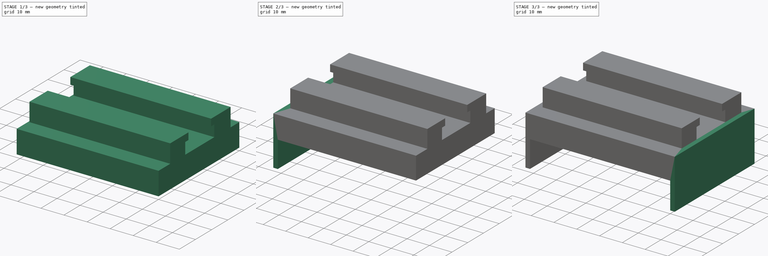
[diagram: build sequence overview — one tinted view per stage of 3, left to right]
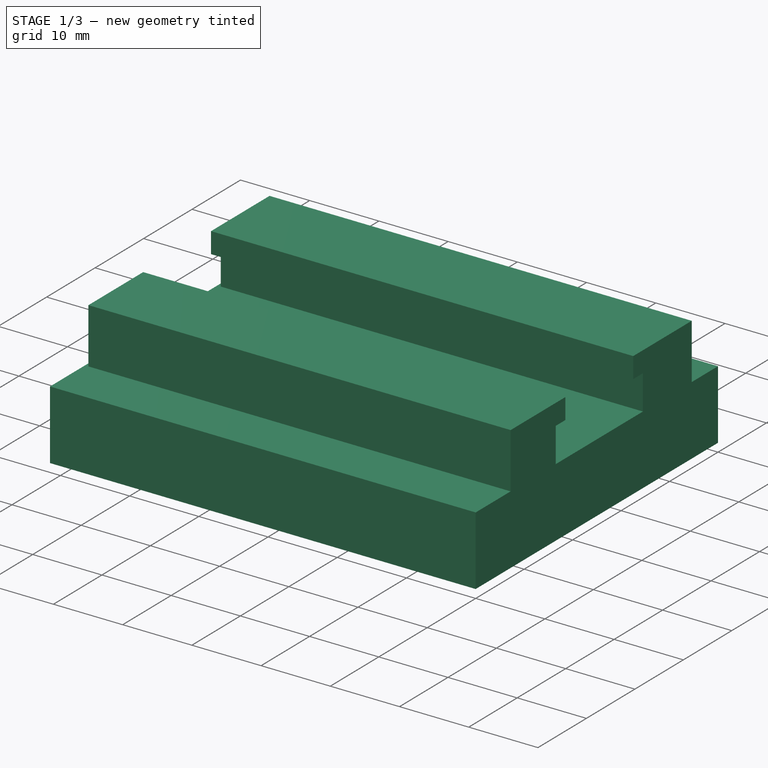
[diagram: stage 1 of 3 — iso view after this stage's code; geometry added in this stage tinted green]
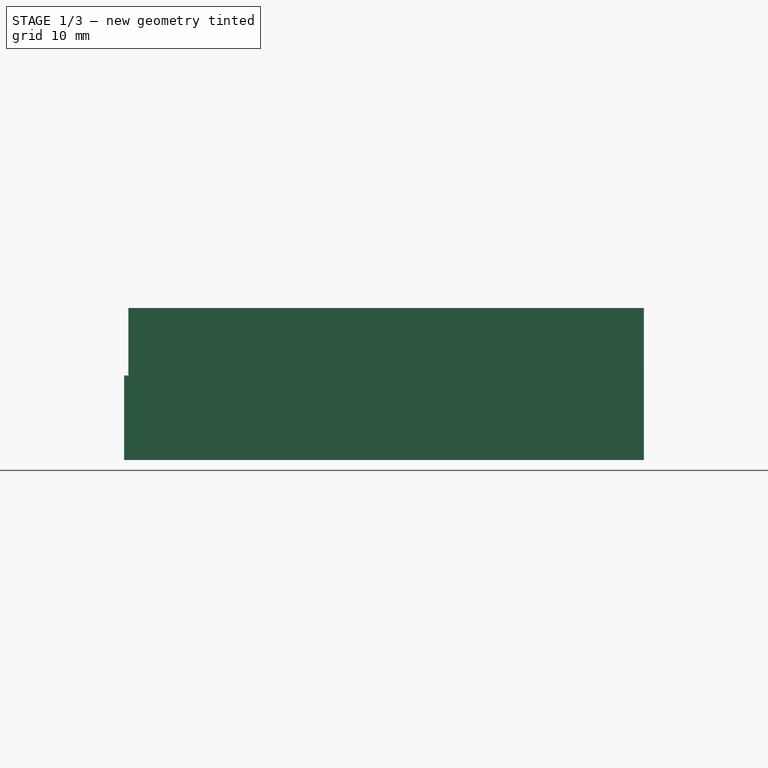
[diagram: stage 1 of 3 — front view after this stage's code; geometry added in this stage tinted green]
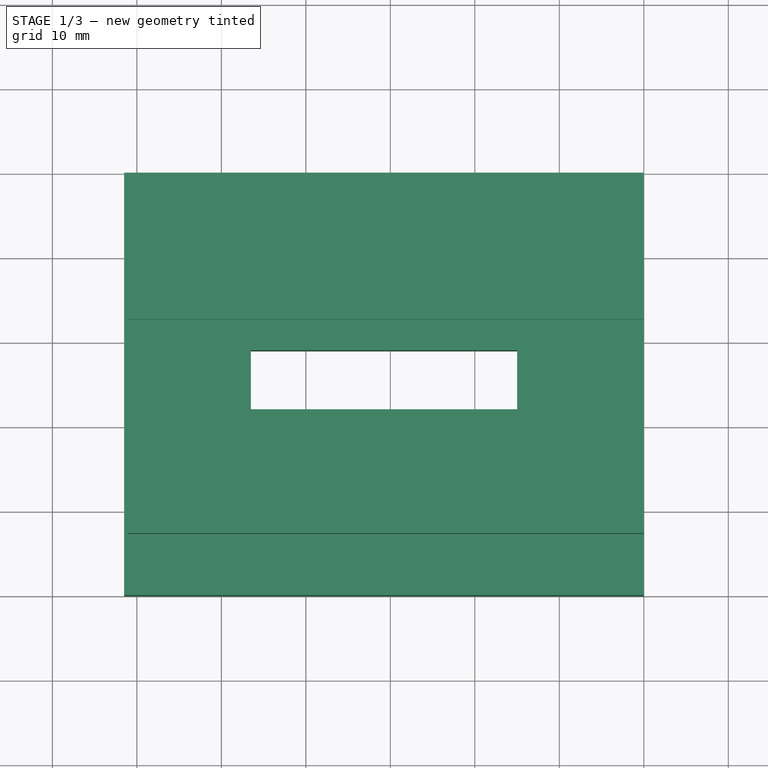
[diagram: stage 1 of 3 — top view after this stage's code; geometry added in this stage tinted green]
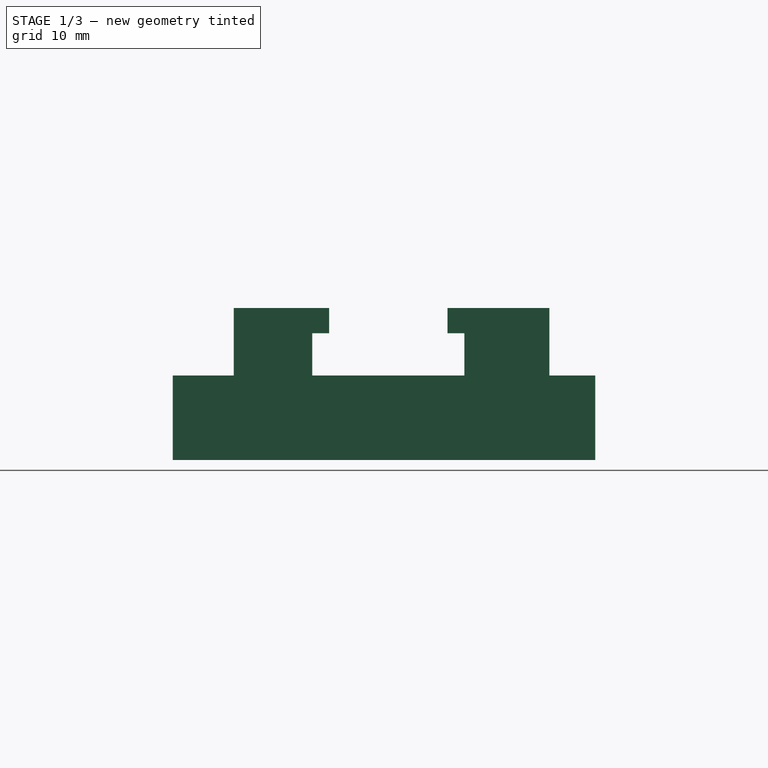
[diagram: stage 1 of 3 — right view after this stage's code; geometry added in this stage tinted green]
FCSTD DOCUMENT  (FreeCAD 1.0R38643 (Git))
Label: Braket
License: All rights reserved
LicenseURL: https://en.wikipedia.org/wiki/All_rights_reserved
objects: TechDraw::DrawViewDimension×9, Sketcher::SketchObject×5, PartDesign::Pad×5, TechDraw::DrawProjGroupItem×3, TechDraw::DrawSVGTemplate×1, PartDesign::Body×1, TechDraw::DrawPage×1
note: 44 computed .brp shape members not serialized (recipe doc carries the construction recipe); baked Part::Feature solids carry a one-line shape summary decoded from their .brp

FEATURE [Sketcher::SketchObject] Sketch
  ArcFitTolerance = 1e-06
  AttachmentSupport = -> [XY_Plane]
  FullyConstrained = true
  MakeInternals = false
  MapMode = 5
  sketch-geometry (8):
    g0: LineSegment StartX=-61.5 StartY=50 StartZ=0 EndX=-61.5 EndY=0 EndZ=0
    g1: LineSegment StartX=-61.5 StartY=0 StartZ=0 EndX=0 EndY=0 EndZ=0
    g2: LineSegment StartX=0 StartY=0 StartZ=0 EndX=0 EndY=50 EndZ=0
    g3: LineSegment StartX=0 StartY=50 StartZ=0 EndX=-61.5 EndY=50 EndZ=0
    g4: LineSegment StartX=-46.5 StartY=29 StartZ=0 EndX=-46.5 EndY=22 EndZ=0
    g5: LineSegment StartX=-46.5 StartY=22 StartZ=0 EndX=-15 EndY=22 EndZ=0
    g6: LineSegment StartX=-15 StartY=22 StartZ=0 EndX=-15 EndY=29 EndZ=0
    g7: LineSegment StartX=-15 StartY=29 StartZ=0 EndX=-46.5 EndY=29 EndZ=0
  constraints (23):
    c: Coincident(g0,g1)
    c: Coincident(g1,g2)
    c: Coincident(g2,g3)
    c: Coincident(g3,g0)
    c: Vertical(g0)
    c: Vertical(g2)
    c: Horizontal(g1)
    c: Horizontal(g3)
    c: Coincident(g1,g-1)
    c: Coincident(g4,g5)
    c: Coincident(g5,g6)
    c: Coincident(g6,g7)
    c: Coincident(g7,g4)
    c: Vertical(g4)
    c: Vertical(g6)
    c: Horizontal(g5)
    c: Horizontal(g7)
    c: DistanceX(g0,g2) = 61.5
    c: DistanceY(g-1,g0) = 50
    c: DistanceX(g6,g2) = 15
    c: DistanceX(g0,g4) = 15
    c: DistanceY(g4,g4) = 7
    c: DistanceY(g4,g0) = 21
FEATURE [PartDesign::Pad] Pad
  Direction = (0,0,1)
  Length = 10
  Length2 = 10
  Profile = -> Sketch
  ReferenceAxis = -> Sketch [N_Axis]
  Refine = true
  Suppressed = false
  Type = 0
FEATURE [Sketcher::SketchObject] Sketch001
  ArcFitTolerance = 1e-06
  AttachmentSupport = -> [Pad]
  ExternalGeometry = -> [Pad]
  FullyConstrained = false
  MakeInternals = false
  MapMode = 5
  Placement = pos=(0,0,0) rot=(0.57735,0.57735,0.57735;2.0944rad)
  sketch-geometry (12):
    g0: LineSegment StartX=7.2128 StartY=5 StartZ=0 EndX=7.2128 EndY=18 EndZ=0
    g1: LineSegment StartX=7.2128 StartY=18 StartZ=0 EndX=18.5127 EndY=18 EndZ=0
    g2: LineSegment StartX=18.5127 StartY=18 StartZ=0 EndX=18.5127 EndY=15 EndZ=0
    g3: LineSegment StartX=18.5127 StartY=15 StartZ=0 EndX=16.5127 EndY=15 EndZ=0
    g4: LineSegment StartX=16.5127 StartY=15 StartZ=0 EndX=16.5127 EndY=5 EndZ=0
    g5: LineSegment StartX=7.2128 StartY=5 StartZ=0 EndX=16.5127 EndY=5 EndZ=0
    g6: LineSegment StartX=44.5791 StartY=5 StartZ=0 EndX=44.5791 EndY=18 EndZ=0
    g7: LineSegment StartX=44.5791 StartY=18 StartZ=0 EndX=32.5127 EndY=18 EndZ=0
    g8: LineSegment StartX=32.5127 StartY=18 StartZ=0 EndX=32.5127 EndY=15 EndZ=0
    g9: LineSegment StartX=32.5127 StartY=15 StartZ=0 EndX=34.5127 EndY=15 EndZ=0
    g10: LineSegment StartX=34.5127 StartY=15 StartZ=0 EndX=34.5127 EndY=5 EndZ=0
    g11: LineSegment StartX=44.5791 StartY=5 StartZ=0 EndX=34.5127 EndY=5 EndZ=0
  constraints (33):
    c: Vertical(g0)
    c: Coincident(g1,g0)
    c: Horizontal(g1)
    c: Coincident(g2,g1)
    c: Vertical(g2)
    c: Coincident(g3,g2)
    c: Horizontal(g3)
    c: Coincident(g4,g3)
    c: Vertical(g4)
    c: Coincident(g5,g0)
    c: Coincident(g5,g4)
    c: Horizontal(g4,g0)
    c: Vertical(g6)
    c: Coincident(g7,g6)
    c: Horizontal(g7)
    c: Coincident(g8,g7)
    c: Vertical(g8)
    c: Coincident(g9,g8)
    c: Horizontal(g9)
    c: Coincident(g10,g9)
    c: Vertical(g10)
    c: Coincident(g11,g6)
    c: Coincident(g11,g10)
    c: Horizontal(g10,g6)
    c: DistanceX(g4,g10) = 18
    c: DistanceY(g-1,g0) = 5
    c: DistanceY(g-1,g6) = 5
    c: Horizontal(g3,g9)
    c: Horizontal(g1,g7)
    c: DistanceY(g-3,g9) = 5
    c: DistanceX(g3,g2) = 2
    c: DistanceX(g8,g9) = 2
    c: DistanceY(g2,g1) = 3
FEATURE [PartDesign::Pad] Pad001
  BaseFeature = -> Pad
  Direction = (1,0,0)
  Length = 61
  Length2 = 10
  Profile = -> Sketch001
  ReferenceAxis = -> Sketch001 [N_Axis]
  Refine = true
  Reversed = true
  Suppressed = false
  Type = 0
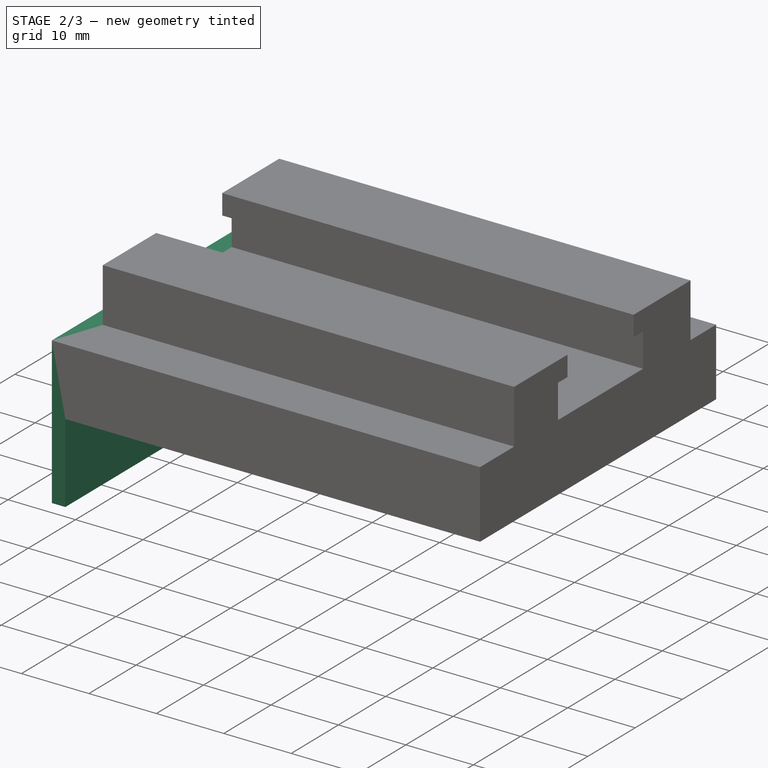
[diagram: stage 2 of 3 — iso view after this stage's code; geometry added in this stage tinted green]
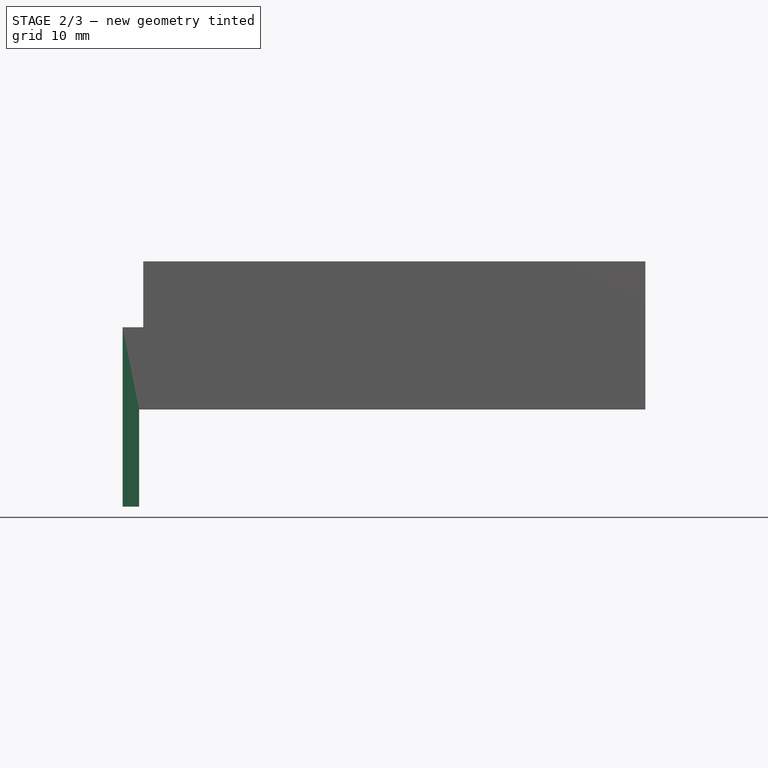
[diagram: stage 2 of 3 — front view after this stage's code; geometry added in this stage tinted green]
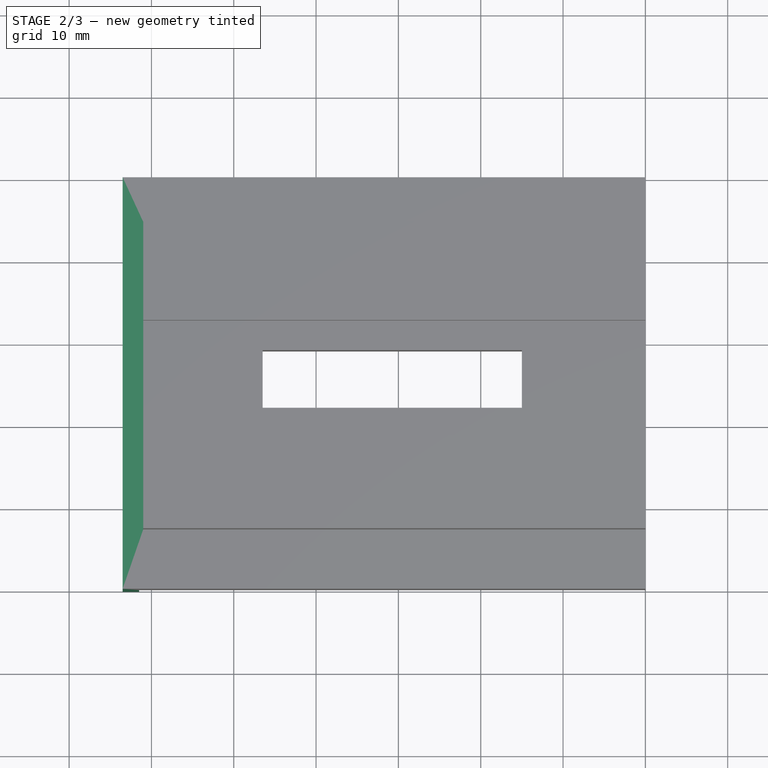
[diagram: stage 2 of 3 — top view after this stage's code; geometry added in this stage tinted green]
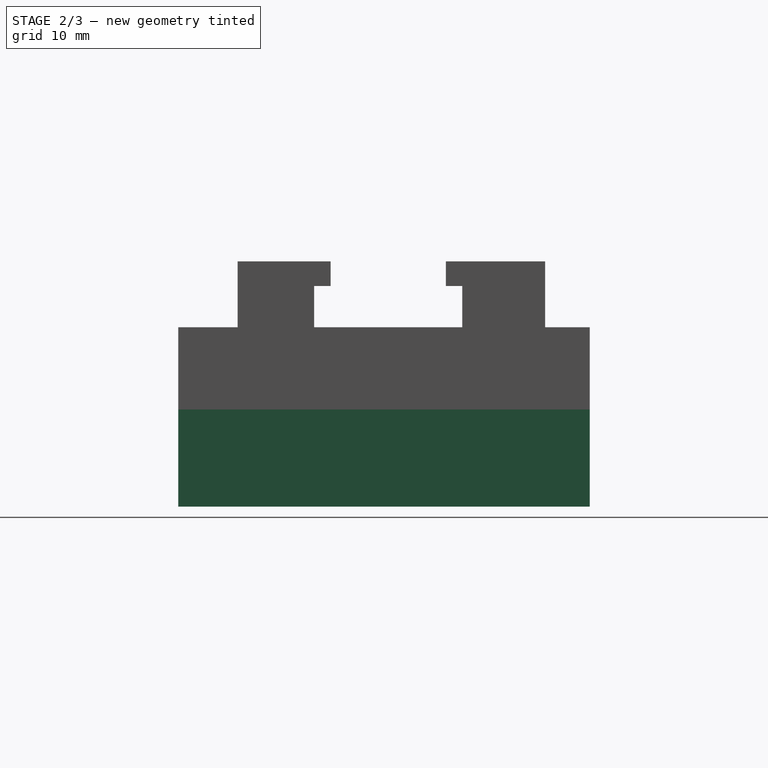
[diagram: stage 2 of 3 — right view after this stage's code; geometry added in this stage tinted green]
FEATURE [Sketcher::SketchObject] Sketch002
  ArcFitTolerance = 1e-06
  AttachmentSupport = -> [Pad001]
  ExternalGeometry = -> [Pad001]
  FullyConstrained = false
  MakeInternals = false
  MapMode = 5
  Placement = pos=(-61.5,0,0) rot=(0.57735,-0.57735,-0.57735;2.0944rad)
  sketch-geometry (4):
    g0: LineSegment StartX=-50 StartY=10 StartZ=0 EndX=-50 EndY=-11.7959 EndZ=0
    g1: LineSegment StartX=-50 StartY=-11.7959 StartZ=0 EndX=0 EndY=-11.7959 EndZ=0
    g2: LineSegment StartX=0 StartY=-11.7959 StartZ=0 EndX=0 EndY=10 EndZ=0
    g3: LineSegment StartX=0 StartY=10 StartZ=0 EndX=-50 EndY=10 EndZ=0
  constraints (10):
    c: Coincident(g0,g1)
    c: Coincident(g1,g2)
    c: Coincident(g2,g3)
    c: Coincident(g3,g0)
    c: Vertical(g0)
    c: Vertical(g2)
    c: Horizontal(g1)
    c: Horizontal(g3)
    c: Coincident(g0,g-4)
    c: PointOnObject(g1,g-2)
FEATURE [PartDesign::Pad] Pad002
  BaseFeature = -> Pad001
  Direction = (-1,0,0)
  Length = 2
  Length2 = 10
  Profile = -> Sketch002
  ReferenceAxis = -> Sketch002 [N_Axis]
  Refine = true
  Suppressed = false
  Type = 0
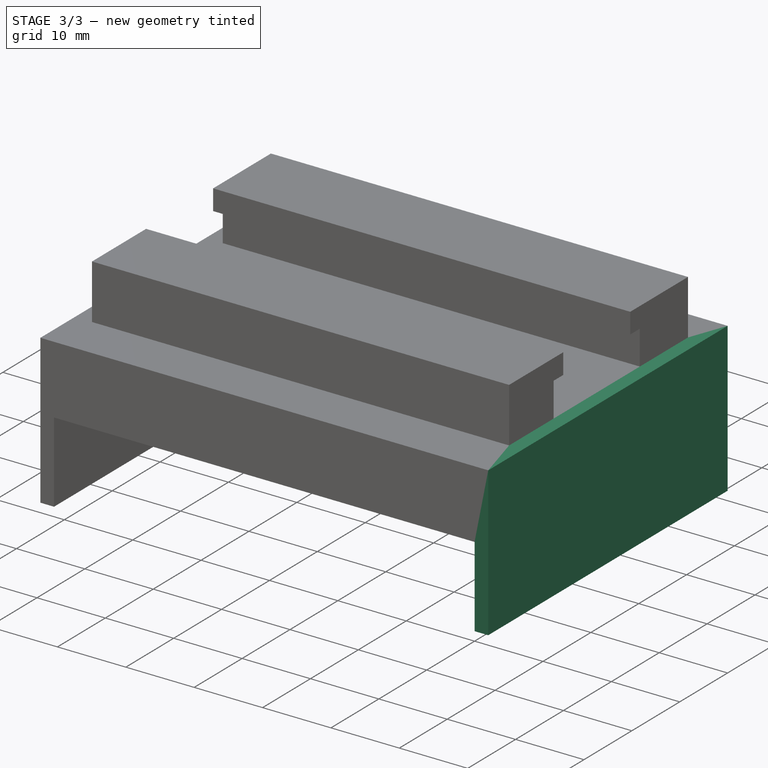
[diagram: stage 3 of 3 — iso view after this stage's code; geometry added in this stage tinted green]
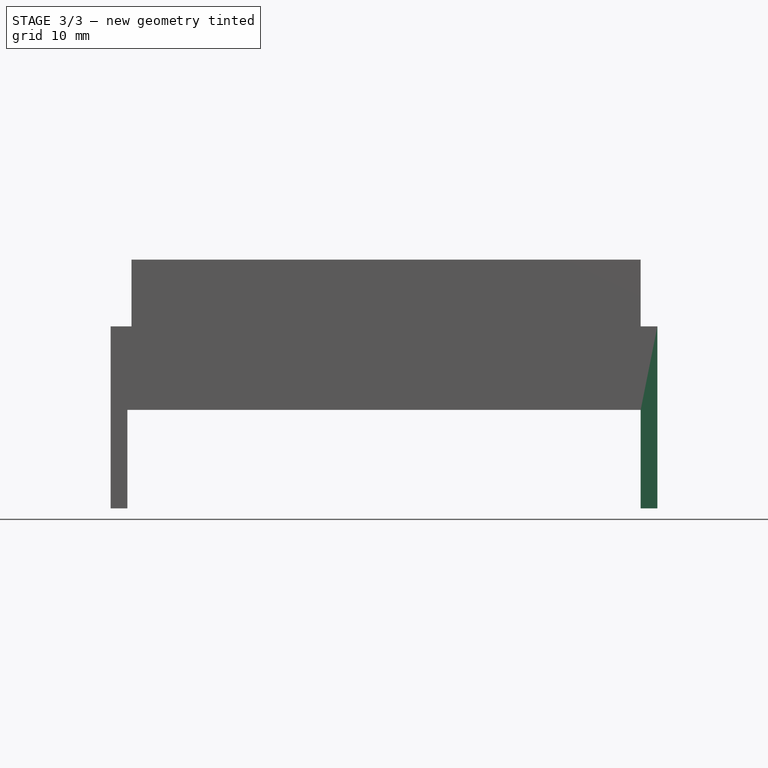
[diagram: stage 3 of 3 — front view after this stage's code; geometry added in this stage tinted green]
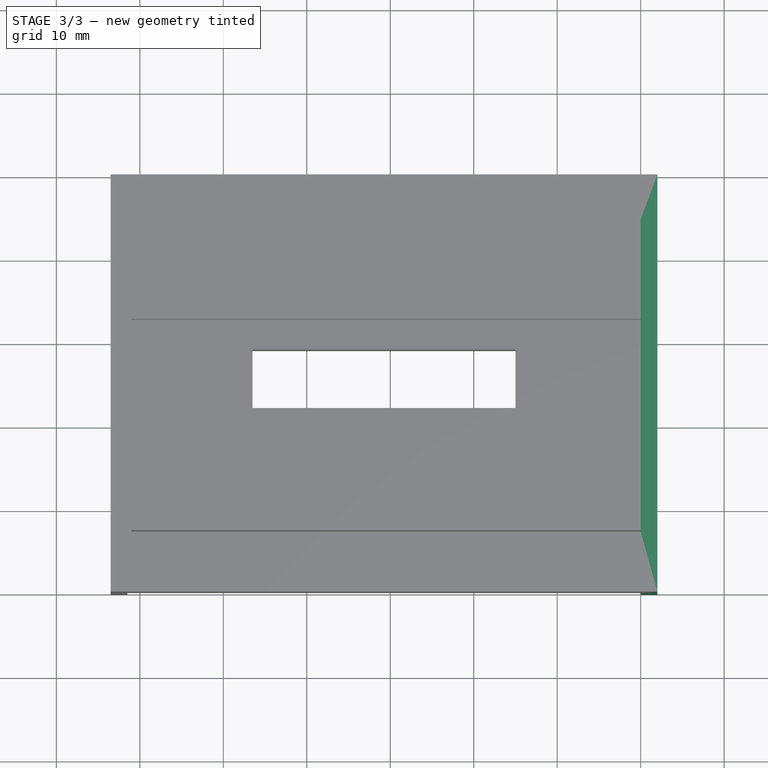
[diagram: stage 3 of 3 — top view after this stage's code; geometry added in this stage tinted green]
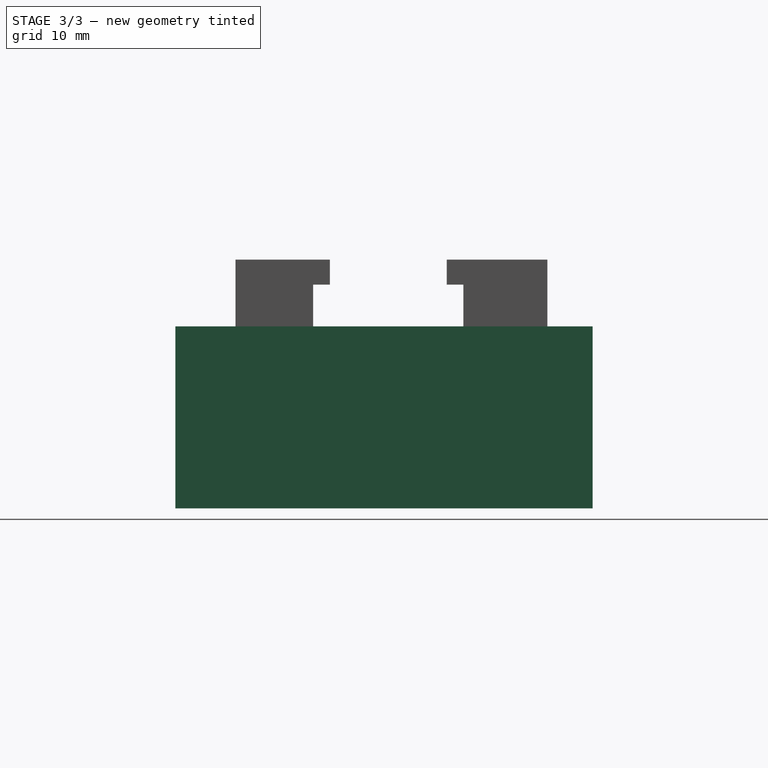
[diagram: stage 3 of 3 — right view after this stage's code; geometry added in this stage tinted green]
FEATURE [Sketcher::SketchObject] Sketch003
  ArcFitTolerance = 1e-06
  FullyConstrained = false
  MakeInternals = false
  MapMode = 5
  Placement = pos=(0,0,0) rot=(0.57735,0.57735,0.57735;2.0944rad)
  sketch-geometry (4):
    g0: LineSegment StartX=0 StartY=10 StartZ=0 EndX=0 EndY=-11.7959 EndZ=0
    g1: LineSegment StartX=0 StartY=-11.7959 StartZ=0 EndX=50 EndY=-11.7959 EndZ=0
    g2: LineSegment StartX=50 StartY=-11.7959 StartZ=0 EndX=50 EndY=10 EndZ=0
    g3: LineSegment StartX=50 StartY=10 StartZ=0 EndX=0 EndY=10 EndZ=0
  constraints (8):
    c: Coincident(g0,g1)
    c: Coincident(g1,g2)
    c: Coincident(g2,g3)
    c: Coincident(g3,g0)
    c: Vertical(g0)
    c: Vertical(g2)
    c: Horizontal(g1)
    c: Horizontal(g3)
FEATURE [PartDesign::Pad] Pad004
  BaseFeature = -> Pad002
  Direction = (1,1e-16,-1e-16)
  Length = 2
  Length2 = 10
  Profile = -> Sketch003
  ReferenceAxis = -> Sketch003 [N_Axis]
  Refine = true
  Suppressed = false
  Type = 0
FEATURE [TechDraw::DrawSVGTemplate] Template
  Height = 210
  Orientation = 1
  Template = <path>
  Width = 297
FEATURE [TechDraw::DrawProjGroupItem] View
  CoarseView = false
  Direction = (-1,-1e-16,0)
  Focus = 100
  HardHidden = false
  IsoCount = 0
  IsoHidden = false
  IsoVisible = false
  LockPosition = false
  Perspective = false
  Rotation = 0
  RotationVector = (1,0,0)
  ScaleType = 0
  ScrubCount = 1
  SeamHidden = false
  SeamVisible = false
  SmoothHidden = false
  SmoothVisible = true
  Source = -> [Pad002]
  Type = 0
  X = 59.5513
  XDirection = (1e-16,-1,0)
  Y = 144.187
FEATURE [TechDraw::DrawViewDimension] Dimension
  AngleOverride = false
  Arbitrary = false
  ArbitraryTolerances = false
  BoxCorners = (2) [(-25,-16.8685,0),(25,16.8685,0)]
  EqualTolerance = true
  ExtensionAngle = 0
  FormatSpec = %.2w
  FormatSpecOverTolerance = %+.2w
  FormatSpecUnderTolerance = %+.2w
  Inverted = false
  LineAngle = 0
  LockPosition = false
  MeasureType = 1
  OverTolerance = 0
  References2D = -> [View]
  Rotation = 0
  ScaleType = 0
  TheoreticalExact = false
  Type = 2
  UnderTolerance = 0
  X = 34.4751
  Y = 15.0324
FEATURE [TechDraw::DrawViewDimension] Dimension001
  AngleOverride = false
  Arbitrary = false
  ArbitraryTolerances = false
  BoxCorners = (2) [(-25,-16.8685,0),(25,16.8685,0)]
  EqualTolerance = true
  ExtensionAngle = 0
  FormatSpec = %.2w
  FormatSpecOverTolerance = %+.2w
  FormatSpecUnderTolerance = %+.2w
  Inverted = false
  LineAngle = 0
  LockPosition = false
  MeasureType = 1
  OverTolerance = 0
  References2D = -> [View]
  Rotation = 0
  ScaleType = 0
  TheoreticalExact = false
  Type = 1
  UnderTolerance = 0
  X = -0.512702
  Y = 13.4038
FEATURE [Sketcher::SketchObject] Sketch004
  ArcFitTolerance = 1e-06
  AttachmentSupport = -> [Pad002]
  ExternalGeometry = -> [Pad002]
  FullyConstrained = true
  MakeInternals = false
  MapMode = 5
  Placement = pos=(0,0,0) rot=(0.57735,0.57735,0.57735;2.0944rad)
  sketch-geometry (4):
    g0: LineSegment StartX=0 StartY=10 StartZ=0 EndX=0 EndY=-11.7959 EndZ=0
    g1: LineSegment StartX=0 StartY=-11.7959 StartZ=0 EndX=50 EndY=-11.7959 EndZ=0
    g2: LineSegment StartX=50 StartY=-11.7959 StartZ=0 EndX=50 EndY=10 EndZ=0
    g3: LineSegment StartX=50 StartY=10 StartZ=0 EndX=0 EndY=10 EndZ=0
  constraints (10):
    c: Coincident(g0,g1)
    c: Coincident(g1,g2)
    c: Coincident(g2,g3)
    c: Coincident(g3,g0)
    c: Vertical(g0)
    c: Vertical(g2)
    c: Horizontal(g1)
    c: Horizontal(g3)
    c: Coincident(g0,g-3)
    c: Coincident(g1,g-4)
FEATURE [PartDesign::Pad] Pad005
  BaseFeature = -> Pad004
  Direction = (1,0,0)
  Length = 2
  Length2 = 10
  Profile = -> Sketch004
  ReferenceAxis = -> Sketch004 [N_Axis]
  Refine = true
  Suppressed = false
  Type = 0
FEATURE [PartDesign::Body] Body
  AllowCompound = false
  Group = -> [Sketch,Pad,Sketch001,Pad001,Sketch002,Pad002,Sketch003,Pad004,Sketch004,Pad005]
  Origin = -> Origin
  Tip = -> Pad005
FEATURE [TechDraw::DrawProjGroupItem] View001
  CoarseView = false
  Direction = (0,-1,0)
  Focus = 100
  HardHidden = false
  IsoCount = 0
  IsoHidden = false
  IsoVisible = false
  LockPosition = false
  Perspective = false
  Rotation = 0
  RotationVector = (1,0,0)
  ScaleType = 0
  ScrubCount = 1
  SeamHidden = false
  SeamVisible = false
  SmoothHidden = false
  SmoothVisible = true
  Source = -> [Pad005]
  Type = 0
  X = 160.499
  XDirection = (1,0,0)
  Y = 144.187
FEATURE [TechDraw::DrawViewDimension] Dimension002
  AngleOverride = false
  Arbitrary = false
  ArbitraryTolerances = false
  BoxCorners = (2) [(-32.75,-16.8685,0),(32.75,16.8685,0)]
  EqualTolerance = true
  ExtensionAngle = 0
  FormatSpec = %.2w
  FormatSpecOverTolerance = %+.2w
  FormatSpecUnderTolerance = %+.2w
  Inverted = false
  LineAngle = 0
  LockPosition = false
  MeasureType = 1
  OverTolerance = 0
  References2D = -> [View001]
  Rotation = 0
  ScaleType = 0
  TheoreticalExact = false
  Type = 1
  UnderTolerance = 0
  X = 0
  Y = -14.3685
FEATURE [TechDraw::DrawProjGroupItem] View002
  CoarseView = false
  Direction = (0,0,1)
  Focus = 100
  HardHidden = false
  IsoCount = 0
  IsoHidden = false
  IsoVisible = false
  LockPosition = false
  Perspective = false
  Rotation = 0
  RotationVector = (1,0,0)
  ScaleType = 0
  ScrubCount = 1
  SeamHidden = false
  SeamVisible = false
  SmoothHidden = false
  SmoothVisible = true
  Source = -> [Pad005]
  Type = 0
  X = 59.5513
  XDirection = (1,0,0)
  Y = 72.8167
FEATURE [TechDraw::DrawViewDimension] Dimension003
  AngleOverride = false
  Arbitrary = false
  ArbitraryTolerances = false
  BoxCorners = (2) [(-32.75,-25,0),(32.75,25,0)]
  EqualTolerance = true
  ExtensionAngle = 0
  FormatSpec = %.2w
  FormatSpecOverTolerance = %+.2w
  FormatSpecUnderTolerance = %+.2w
  Inverted = false
  LineAngle = 0
  LockPosition = false
  MeasureType = 1
  OverTolerance = 0
  References2D = -> [View002]
  Rotation = 0
  ScaleType = 0
  TheoreticalExact = false
  Type = 1
  UnderTolerance = 0
  X = 24.25
  Y = 32.9291
FEATURE [TechDraw::DrawViewDimension] Dimension004
  AngleOverride = false
  Arbitrary = false
  ArbitraryTolerances = false
  BoxCorners = (2) [(-32.75,-25,0),(32.75,25,0)]
  EqualTolerance = true
  ExtensionAngle = 0
  FormatSpec = %.2w
  FormatSpecOverTolerance = %+.2w
  FormatSpecUnderTolerance = %+.2w
  Inverted = false
  LineAngle = 0
  LockPosition = false
  MeasureType = 1
  OverTolerance = 0
  References2D = -> [View002]
  Rotation = 0
  ScaleType = 0
  TheoreticalExact = false
  Type = 1
  UnderTolerance = 0
  X = -24.25
  Y = 32.9291
FEATURE [TechDraw::DrawViewDimension] Dimension005
  AngleOverride = false
  Arbitrary = false
  ArbitraryTolerances = false
  BoxCorners = (2) [(-25,-14.898,0),(25,14.898,0)]
  EqualTolerance = true
  ExtensionAngle = 0
  FormatSpec = %.2w
  FormatSpecOverTolerance = %+.2w
  FormatSpecUnderTolerance = %+.2w
  Inverted = false
  LineAngle = 0
  LockPosition = false
  MeasureType = 1
  OverTolerance = 0
  References2D = -> [View]
  Rotation = 0
  ScaleType = 0
  TheoreticalExact = false
  Type = 1
  UnderTolerance = 0
  X = -8.5127
  Y = 24.9334
FEATURE [TechDraw::DrawViewDimension] Dimension006
  AngleOverride = false
  Arbitrary = false
  ArbitraryTolerances = false
  BoxCorners = (2) [(-32.75,-25,0),(32.75,25,0)]
  EqualTolerance = true
  ExtensionAngle = 0
  FormatSpec = %.2w
  FormatSpecOverTolerance = %+.2w
  FormatSpecUnderTolerance = %+.2w
  Inverted = false
  LineAngle = 0
  LockPosition = false
  MeasureType = 1
  OverTolerance = 0
  References2D = -> [View002]
  Rotation = 0
  ScaleType = 0
  TheoreticalExact = false
  Type = 1
  UnderTolerance = 0
  X = 0
  Y = 37.8168
FEATURE [TechDraw::DrawViewDimension] Dimension007
  AngleOverride = false
  Arbitrary = false
  ArbitraryTolerances = false
  BoxCorners = (2) [(-32.75,-25,0),(32.75,25,0)]
  EqualTolerance = true
  ExtensionAngle = 0
  FormatSpec = %.2w
  FormatSpecOverTolerance = %+.2w
  FormatSpecUnderTolerance = %+.2w
  Inverted = false
  LineAngle = 0
  LockPosition = false
  MeasureType = 1
  OverTolerance = 0
  References2D = -> [View002]
  Rotation = 0
  ScaleType = 0
  TheoreticalExact = false
  Type = 2
  UnderTolerance = 0
  X = 40.0106
  Y = 0.512702
FEATURE [TechDraw::DrawViewDimension] Dimension008
  AngleOverride = false
  Arbitrary = false
  ArbitraryTolerances = false
  BoxCorners = (2) [(-32.75,-14.898,0),(32.75,14.898,0)]
  EqualTolerance = true
  ExtensionAngle = 0
  FormatSpec = %.2w
  FormatSpecOverTolerance = %+.2w
  FormatSpecUnderTolerance = %+.2w
  Inverted = false
  LineAngle = 0
  LockPosition = false
  MeasureType = 1
  OverTolerance = 0
  References2D = -> [View001]
  Rotation = 0
  ScaleType = 0
  TheoreticalExact = false
  Type = 1
  UnderTolerance = 0
  X = -7.49261
  Y = -32.4263
FEATURE [TechDraw::DrawPage] Page
  KeepUpdated = true
  NextBalloonIndex = 1
  ProjectionType = 0
  Template = -> Template
  Views = -> [View,Dimension,Dimension001,View001,Dimension002,View002,Dimension003,Dimension004,Dimension005,Dimension006,Dimension007,Dimension008]
note: 1 file-system path scrubbed to <path> (originals preserved in the JSON sidecar)
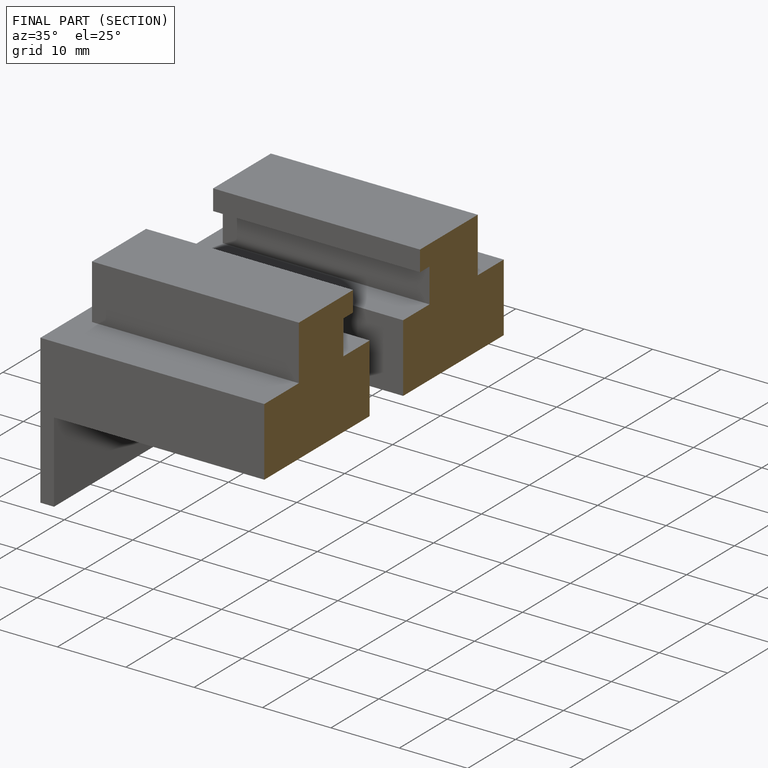
[diagram: finished part — half-section view (interior)]
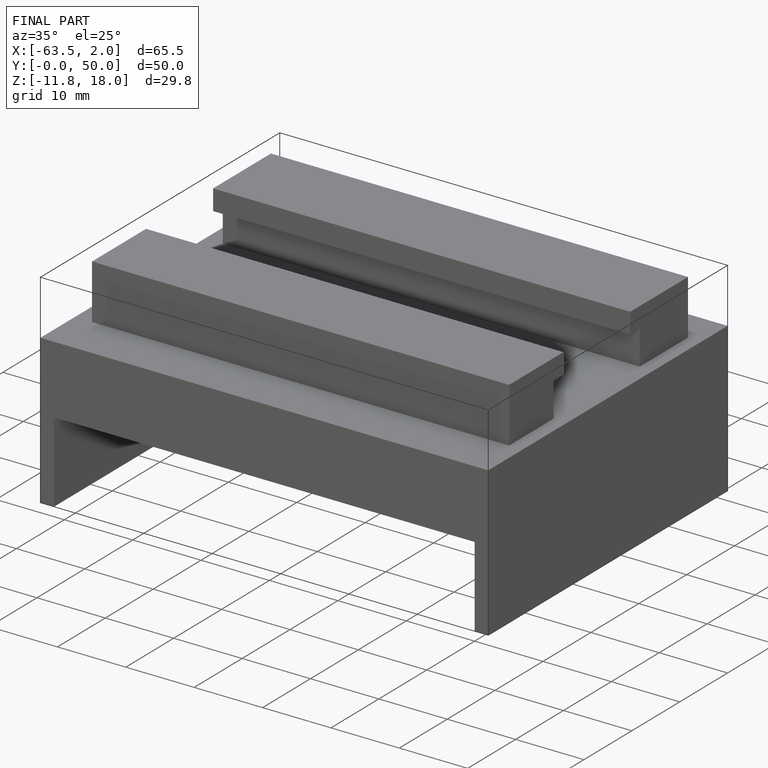
[diagram: finished part — iso view with bounding-box wireframe]
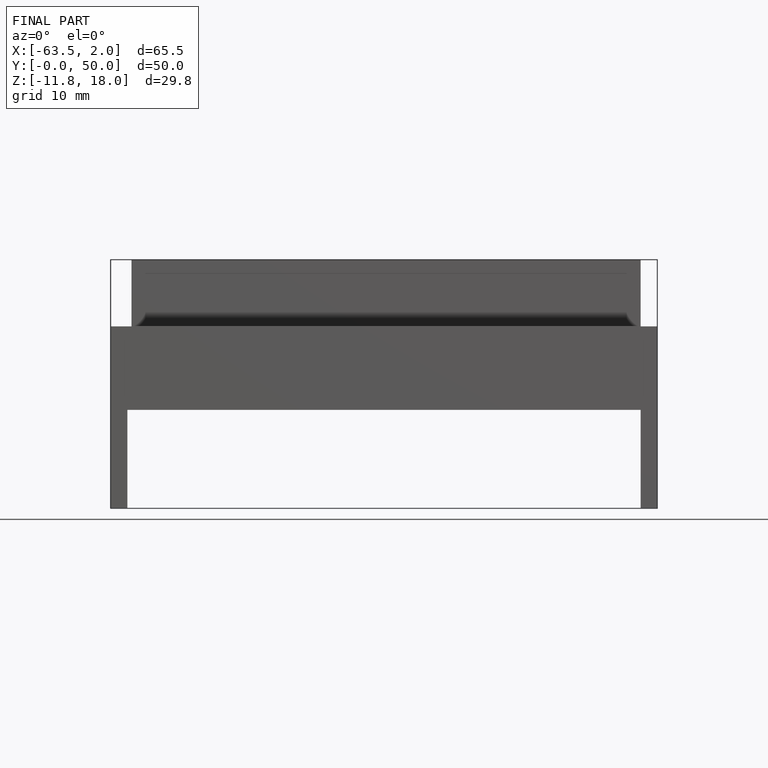
[diagram: finished part — front view with bounding-box wireframe]
